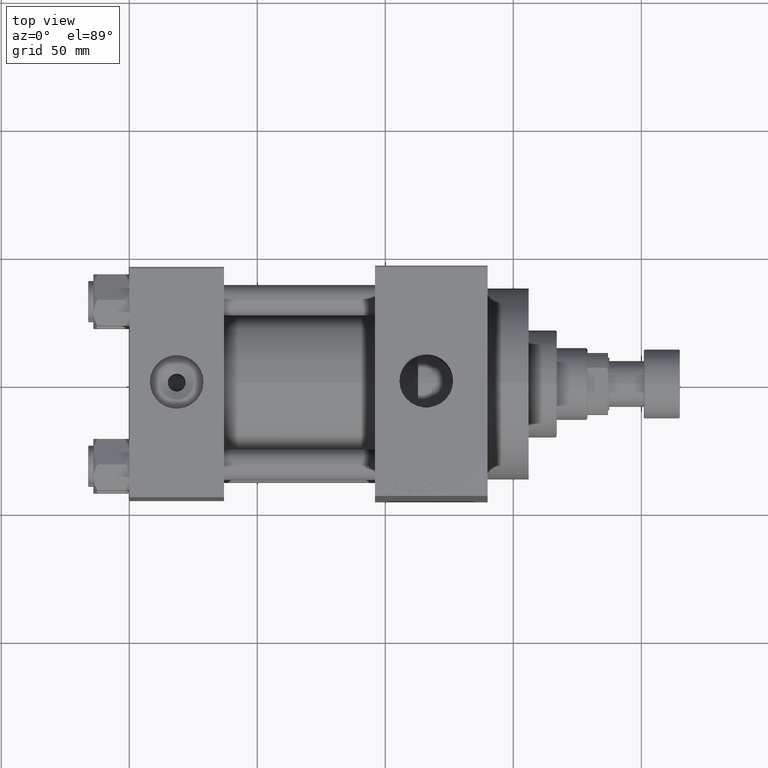
[diagram: clean part render]
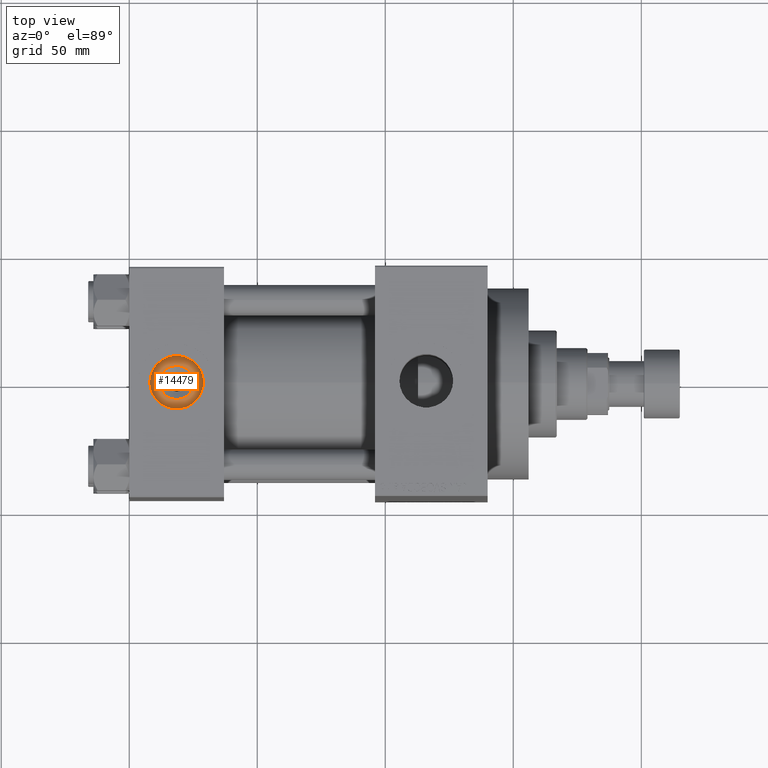
[diagram: same view with one face highlighted and labeled with its STEP entity id]
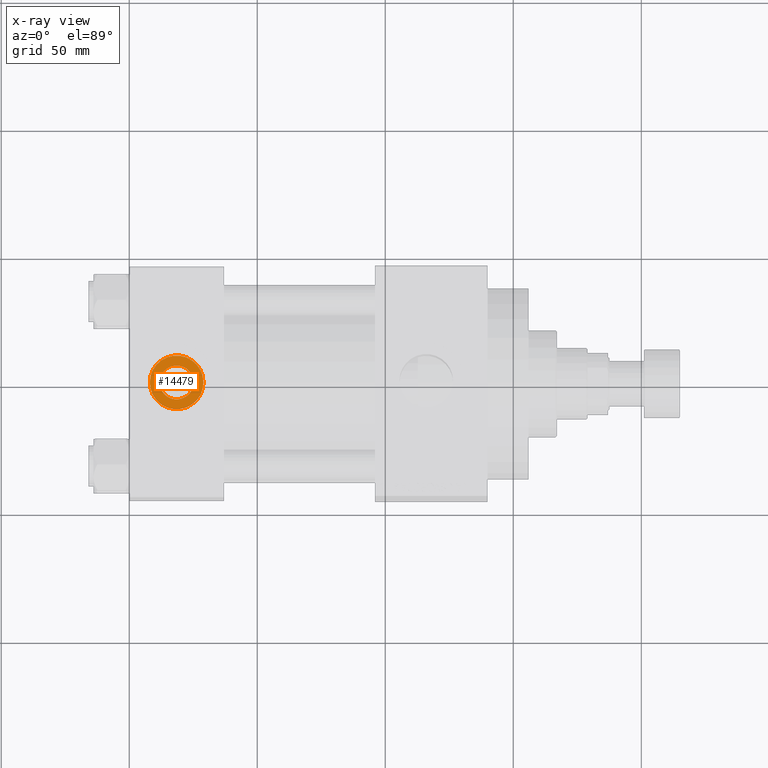
[diagram: x-ray of the same camera — body ghosted, the highlighted face saturated]
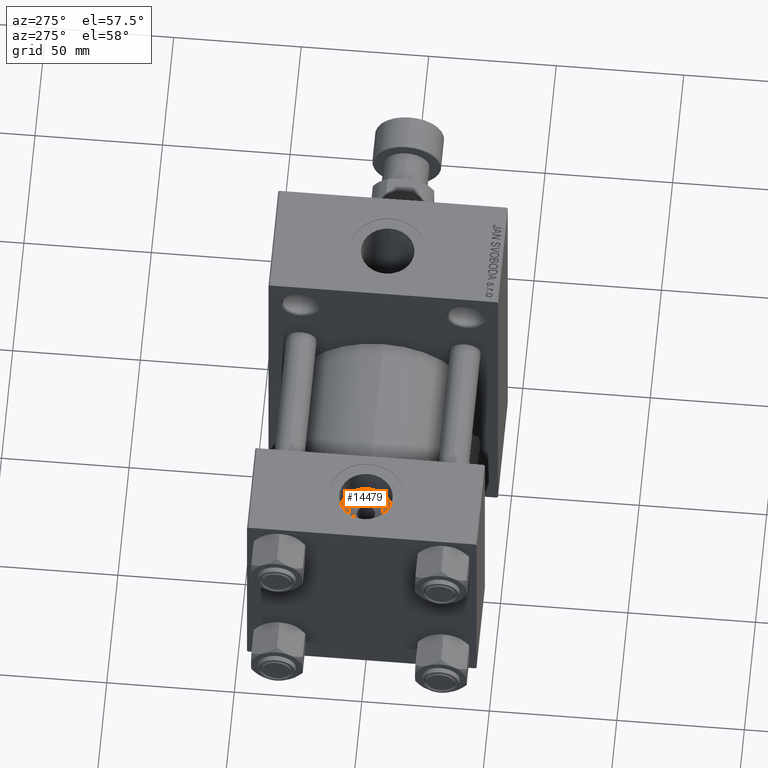
[diagram: same view with one face highlighted and labeled with its STEP entity id]
A machine part, top view. The second image highlights one B-rep face of the part: STEP entity #14479.
The next image is the same camera in x-ray: the body ghosted, the highlighted face saturated — about 0% of this face is hidden behind the body in this view.
A second angle (auxiliary view) of the same face is appended — the face is thin or edge-on in the first view.
In plain terms, the highlighted planar face has unit normal (0, 0, 1).
Its self-contained STEP definition (entity closure, byte-faithful):
#37 = ORIENTED_EDGE ( 'NONE', *, *, #1791, .T. ) ;
#407 = CIRCLE ( 'NONE', #7370, 6.640000000000006786 ) ;
#1791 = EDGE_CURVE ( 'NONE', #46230, #41558, #40814, .T. ) ;
#1853 = DIRECTION ( 'NONE',  ( 1.000000000000000000, 0.000000000000000000, -0.000000000000000000 ) ) ;
#2748 = VERTEX_POINT ( 'NONE', #5621 ) ;
#4277 = PLANE ( 'NONE',  #23948 ) ;
#4679 = AXIS2_PLACEMENT_3D ( 'NONE', #19408, #41561, #19158 ) ;
#4813 = DIRECTION ( 'NONE',  ( 1.000000000000000000, 0.000000000000000000, 0.000000000000000000 ) ) ;
#5465 = DIRECTION ( 'NONE',  ( 0.000000000000000000, 0.000000000000000000, 1.000000000000000000 ) ) ;
#5621 = CARTESIAN_POINT ( 'NONE',  ( 8.019999999999999574, -1.085963448633122417E-14, 34.19999999999999574 ) ) ;
#7370 = AXIS2_PLACEMENT_3D ( 'NONE', #14706, #17859, #28690 ) ;
#8181 = CARTESIAN_POINT ( 'NONE',  ( 18.50000000000000000, -1.214306433183764966E-14, 34.19999999999999574 ) ) ;
#10546 = ORIENTED_EDGE ( 'NONE', *, *, #24021, .T. ) ;
#12567 = EDGE_LOOP ( 'NONE', ( #10546, #25240 ) ) ;
#12902 = DIRECTION ( 'NONE',  ( 0.000000000000000000, 0.000000000000000000, 1.000000000000000000 ) ) ;
#14116 = CIRCLE ( 'NONE', #27168, 10.48000000000000043 ) ;
#14479 = ADVANCED_FACE ( 'NONE', ( #40931, #37332 ), #4277, .T. ) ;
#14706 = CARTESIAN_POINT ( 'NONE',  ( 18.50000000000000000, -1.214306433183764966E-14, 34.19999999999999574 ) ) ;
#14797 = CARTESIAN_POINT ( 'NONE',  ( 11.85999999999999233, -1.132989885720380676E-14, 34.19999999999999574 ) ) ;
#17859 = DIRECTION ( 'NONE',  ( -0.000000000000000000, -0.000000000000000000, -1.000000000000000000 ) ) ;
#18747 = AXIS2_PLACEMENT_3D ( 'NONE', #8181, #41462, #4813 ) ;
#19158 = DIRECTION ( 'NONE',  ( 1.000000000000000000, 0.000000000000000000, 0.000000000000000000 ) ) ;
#19408 = CARTESIAN_POINT ( 'NONE',  ( 18.50000000000000000, -1.214306433183764966E-14, 34.19999999999999574 ) ) ;
#19619 = EDGE_CURVE ( 'NONE', #2748, #31043, #14116, .T. ) ;
#23800 = CARTESIAN_POINT ( 'NONE',  ( 18.50000000000000000, -1.214306433183764966E-14, 34.19999999999999574 ) ) ;
#23948 = AXIS2_PLACEMENT_3D ( 'NONE', #23800, #5465, #1853 ) ;
#24021 = EDGE_CURVE ( 'NONE', #31043, #2748, #24908, .T. ) ;
#24908 = CIRCLE ( 'NONE', #18747, 10.48000000000000043 ) ;
#25240 = ORIENTED_EDGE ( 'NONE', *, *, #19619, .T. ) ;
#27168 = AXIS2_PLACEMENT_3D ( 'NONE', #45921, #12902, #28316 ) ;
#28316 = DIRECTION ( 'NONE',  ( 1.000000000000000000, 0.000000000000000000, 0.000000000000000000 ) ) ;
#28690 = DIRECTION ( 'NONE',  ( 1.000000000000000000, 0.000000000000000000, 0.000000000000000000 ) ) ;
#29627 = EDGE_CURVE ( 'NONE', #41558, #46230, #407, .T. ) ;
#31043 = VERTEX_POINT ( 'NONE', #37925 ) ;
#33954 = ORIENTED_EDGE ( 'NONE', *, *, #29627, .T. ) ;
#37332 = FACE_OUTER_BOUND ( 'NONE', #12567, .T. ) ;
#37925 = CARTESIAN_POINT ( 'NONE',  ( 28.98000000000000043, -1.214306433183764966E-14, 34.19999999999999574 ) ) ;
#40814 = CIRCLE ( 'NONE', #4679, 6.640000000000006786 ) ;
#40931 = FACE_BOUND ( 'NONE', #45985, .T. ) ;
#41462 = DIRECTION ( 'NONE',  ( 0.000000000000000000, 0.000000000000000000, 1.000000000000000000 ) ) ;
#41558 = VERTEX_POINT ( 'NONE', #14797 ) ;
#41561 = DIRECTION ( 'NONE',  ( -0.000000000000000000, -0.000000000000000000, -1.000000000000000000 ) ) ;
#43636 = CARTESIAN_POINT ( 'NONE',  ( 25.14000000000000767, -1.214306433183764966E-14, 34.19999999999999574 ) ) ;
#45921 = CARTESIAN_POINT ( 'NONE',  ( 18.50000000000000000, -1.214306433183764966E-14, 34.19999999999999574 ) ) ;
#45985 = EDGE_LOOP ( 'NONE', ( #37, #33954 ) ) ;
#46230 = VERTEX_POINT ( 'NONE', #43636 ) ;